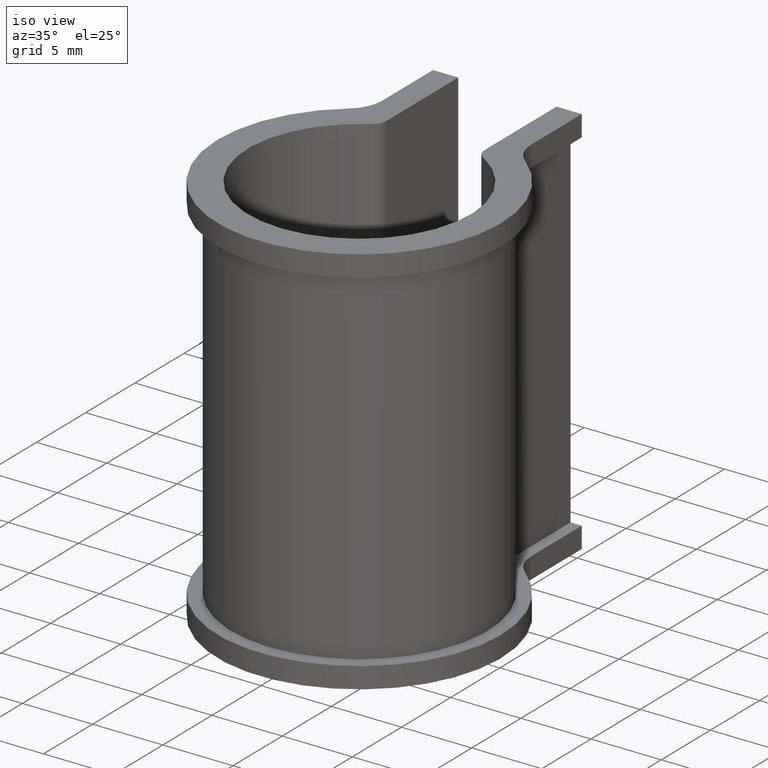
[diagram: clean part render]
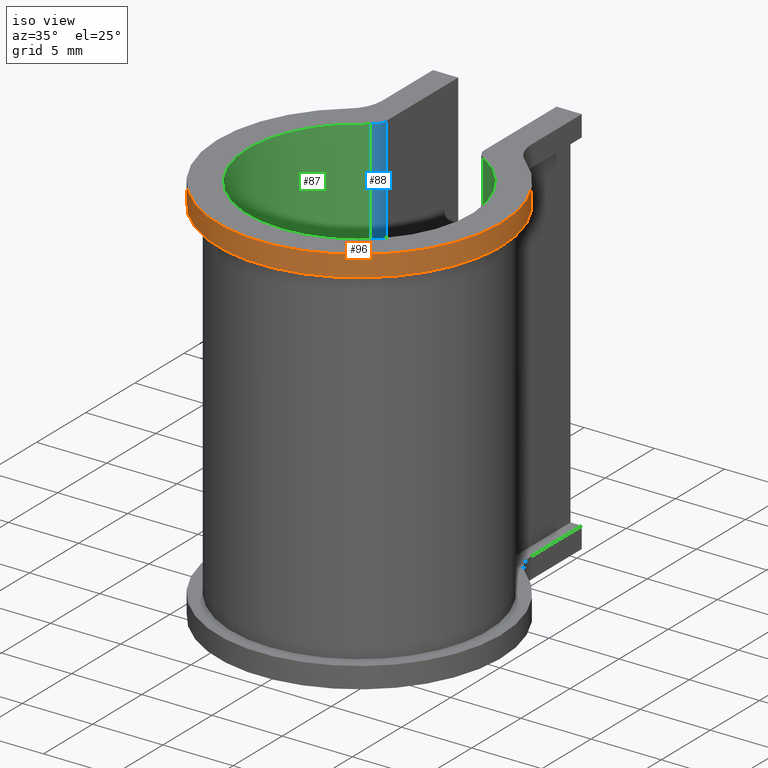
[diagram: same view with three faces highlighted in distinct colors, each labeled with its STEP entity id]
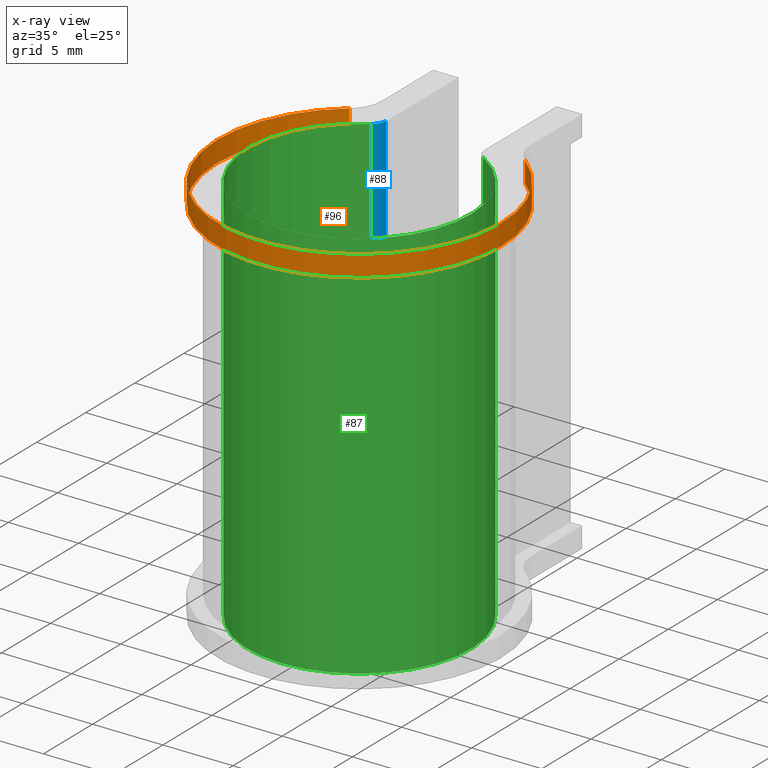
[diagram: x-ray of the same camera — body ghosted, the three highlighted faces saturated]
A machine part, iso view with three faces highlighted in distinct colors.
The next image is the same camera in x-ray (body ghosted, the three faces saturated) — at least one of them is partly hidden behind the body in this view.
Their STEP definitions:

[orange] entity #96 — the highlighted cylindrical surface (partial cylindrical patch) has radius 10.09 mm, axis along (0, 0, 1).
#96 = ADVANCED_FACE( '', ( #144 ), #145, .T. );
#144 = FACE_OUTER_BOUND( '', #196, .T. );
#145 = CYLINDRICAL_SURFACE( '', #197, 10.0900000000000 );
#196 = EDGE_LOOP( '', ( #385, #386, #387, #388 ) );
#197 = AXIS2_PLACEMENT_3D( '', #389, #390, #391 );
#385 = ORIENTED_EDGE( '', *, *, #462, .T. );
#386 = ORIENTED_EDGE( '', *, *, #476, .T. );
#387 = ORIENTED_EDGE( '', *, *, #471, .F. );
#388 = ORIENTED_EDGE( '', *, *, #489, .T. );
#389 = CARTESIAN_POINT( '', ( 0.000000000000000, 0.000000000000000, 1.50000000000000 ) );
#390 = DIRECTION( '', ( 0.000000000000000, 0.000000000000000, 1.00000000000000 ) );
#391 = DIRECTION( '', ( 0.000000000000000, -1.00000000000000, 0.000000000000000 ) );
#462 = EDGE_CURVE( '', #565, #563, #566, .T. );
#471 = EDGE_CURVE( '', #579, #581, #582, .T. );
#476 = EDGE_CURVE( '', #563, #581, #589, .F. );
#489 = EDGE_CURVE( '', #579, #565, #606, .T. );
#563 = VERTEX_POINT( '', #707 );
#565 = VERTEX_POINT( '', #709 );
#566 = CIRCLE( '', #710, 10.0900000000000 );
#579 = VERTEX_POINT( '', #727 );
#581 = VERTEX_POINT( '', #729 );
#582 = CIRCLE( '', #730, 10.0900000000000 );
#589 = LINE( '', #739, #740 );
#606 = LINE( '', #766, #767 );
#707 = CARTESIAN_POINT( '', ( 6.25115170770453, 7.92030317142360, 0.000000000000000 ) );
#709 = CARTESIAN_POINT( '', ( -6.25115170770453, 7.92030317142360, 0.000000000000000 ) );
#710 = AXIS2_PLACEMENT_3D( '', #842, #843, #844 );
#727 = CARTESIAN_POINT( '', ( -6.25115170770453, 7.92030317142360, 1.50000000000000 ) );
#729 = CARTESIAN_POINT( '', ( 6.25115170770453, 7.92030317142360, 1.50000000000000 ) );
#730 = AXIS2_PLACEMENT_3D( '', #861, #862, #863 );
#739 = CARTESIAN_POINT( '', ( 6.25115170770453, 7.92030317142360, 1.50000000000000 ) );
#740 = VECTOR( '', #872, 1000.00000000000 );
#766 = CARTESIAN_POINT( '', ( -6.25115170770453, 7.92030317142360, 1.50000000000000 ) );
#767 = VECTOR( '', #891, 1000.00000000000 );
#842 = CARTESIAN_POINT( '', ( 0.000000000000000, 0.000000000000000, 0.000000000000000 ) );
#843 = DIRECTION( '', ( 0.000000000000000, 0.000000000000000, 1.00000000000000 ) );
#844 = DIRECTION( '', ( 1.00000000000000, 0.000000000000000, 0.000000000000000 ) );
#861 = CARTESIAN_POINT( '', ( 0.000000000000000, 0.000000000000000, 1.50000000000000 ) );
#862 = DIRECTION( '', ( 0.000000000000000, 0.000000000000000, 1.00000000000000 ) );
#863 = DIRECTION( '', ( 1.00000000000000, 0.000000000000000, 0.000000000000000 ) );
#872 = DIRECTION( '', ( 0.000000000000000, 0.000000000000000, -1.00000000000000 ) );
#891 = DIRECTION( '', ( 0.000000000000000, 0.000000000000000, -1.00000000000000 ) );

[blue] entity #88 — the highlighted cylindrical surface (edge-blend (fillet) strip) has radius 1 mm, axis along (0, 0, -1).
#88 = ADVANCED_FACE( '', ( #128 ), #129, .T. );
#128 = FACE_OUTER_BOUND( '', #180, .T. );
#129 = CYLINDRICAL_SURFACE( '', #181, 1.00000000000000 );
#180 = EDGE_LOOP( '', ( #329, #330, #331, #332 ) );
#181 = AXIS2_PLACEMENT_3D( '', #333, #334, #335 );
#329 = ORIENTED_EDGE( '', *, *, #486, .F. );
#330 = ORIENTED_EDGE( '', *, *, #487, .F. );
#331 = ORIENTED_EDGE( '', *, *, #468, .F. );
#332 = ORIENTED_EDGE( '', *, *, #485, .F. );
#333 = CARTESIAN_POINT( '', ( -4.50000000000000, 7.72486893092692, -25.0000000000000 ) );
#334 = DIRECTION( '', ( 0.000000000000000, 0.000000000000000, -1.00000000000000 ) );
#335 = DIRECTION( '', ( 1.00000000000000, 0.000000000000000, 0.000000000000000 ) );
#468 = EDGE_CURVE( '', #574, #576, #577, .T. );
#485 = EDGE_CURVE( '', #599, #574, #601, .T. );
#486 = EDGE_CURVE( '', #602, #599, #603, .F. );
#487 = EDGE_CURVE( '', #576, #602, #604, .F. );
#574 = VERTEX_POINT( '', #721 );
#576 = VERTEX_POINT( '', #723 );
#577 = CIRCLE( '', #724, 1.00000000000000 );
#599 = VERTEX_POINT( '', #756 );
#601 = LINE( '', #758, #759 );
#602 = VERTEX_POINT( '', #760 );
#603 = CIRCLE( '', #761, 1.00000000000000 );
#604 = LINE( '', #762, #763 );
#721 = CARTESIAN_POINT( '', ( -3.99664429530201, 6.86078963216552, 1.50000000000000 ) );
#723 = CARTESIAN_POINT( '', ( -3.50000000000000, 7.72486893092692, 1.50000000000000 ) );
#724 = AXIS2_PLACEMENT_3D( '', #854, #855, #856 );
#756 = CARTESIAN_POINT( '', ( -3.99664429530201, 6.86078963216552, -26.5000000000000 ) );
#758 = CARTESIAN_POINT( '', ( -3.99664429530201, 6.86078963216552, -25.0000000000000 ) );
#759 = VECTOR( '', #885, 1000.00000000000 );
#760 = CARTESIAN_POINT( '', ( -3.50000000000000, 7.72486893092692, -26.5000000000000 ) );
#761 = AXIS2_PLACEMENT_3D( '', #886, #887, #888 );
#762 = CARTESIAN_POINT( '', ( -3.50000000000000, 7.72486893092692, -25.0000000000000 ) );
#763 = VECTOR( '', #889, 1000.00000000000 );
#854 = CARTESIAN_POINT( '', ( -4.50000000000000, 7.72486893092692, 1.50000000000000 ) );
#855 = DIRECTION( '', ( 0.000000000000000, 0.000000000000000, 1.00000000000000 ) );
#856 = DIRECTION( '', ( 1.00000000000000, 0.000000000000000, 0.000000000000000 ) );
#885 = DIRECTION( '', ( 0.000000000000000, 0.000000000000000, 1.00000000000000 ) );
#886 = CARTESIAN_POINT( '', ( -4.50000000000000, 7.72486893092692, -26.5000000000000 ) );
#887 = DIRECTION( '', ( 0.000000000000000, 0.000000000000000, 1.00000000000000 ) );
#888 = DIRECTION( '', ( 1.00000000000000, 0.000000000000000, 0.000000000000000 ) );
#889 = DIRECTION( '', ( 0.000000000000000, 0.000000000000000, 1.00000000000000 ) );

[green] entity #87 — the highlighted cylindrical surface (partial cylindrical patch) has radius 7.94 mm, axis along (0, 0, -1).
#87 = ADVANCED_FACE( '', ( #126 ), #127, .F. );
#126 = FACE_OUTER_BOUND( '', #178, .T. );
#127 = CYLINDRICAL_SURFACE( '', #179, 7.94000000000000 );
#178 = EDGE_LOOP( '', ( #322, #323, #324, #325 ) );
#179 = AXIS2_PLACEMENT_3D( '', #326, #327, #328 );
#322 = ORIENTED_EDGE( '', *, *, #484, .T. );
#323 = ORIENTED_EDGE( '', *, *, #485, .T. );
#324 = ORIENTED_EDGE( '', *, *, #467, .F. );
#325 = ORIENTED_EDGE( '', *, *, #483, .T. );
#326 = CARTESIAN_POINT( '', ( 4.33680868994202E-016, 8.67361737988404E-016, -25.0000000000000 ) );
#327 = DIRECTION( '', ( 0.000000000000000, 0.000000000000000, -1.00000000000000 ) );
#328 = DIRECTION( '', ( -0.440806045340050, -0.897602378780084, 0.000000000000000 ) );
#467 = EDGE_CURVE( '', #573, #574, #575, .T. );
#483 = EDGE_CURVE( '', #573, #596, #598, .F. );
#484 = EDGE_CURVE( '', #596, #599, #600, .T. );
#485 = EDGE_CURVE( '', #599, #574, #601, .T. );
#573 = VERTEX_POINT( '', #720 );
#574 = VERTEX_POINT( '', #721 );
#575 = CIRCLE( '', #722, 7.94000000000000 );
#596 = VERTEX_POINT( '', #752 );
#598 = LINE( '', #754, #755 );
#599 = VERTEX_POINT( '', #756 );
#600 = CIRCLE( '', #757, 7.94000000000000 );
#601 = LINE( '', #758, #759 );
#720 = CARTESIAN_POINT( '', ( 3.99664429530202, 6.86078963216552, 1.50000000000000 ) );
#721 = CARTESIAN_POINT( '', ( -3.99664429530201, 6.86078963216552, 1.50000000000000 ) );
#722 = AXIS2_PLACEMENT_3D( '', #851, #852, #853 );
#752 = CARTESIAN_POINT( '', ( 3.99664429530202, 6.86078963216552, -26.5000000000000 ) );
#754 = CARTESIAN_POINT( '', ( 3.99664429530202, 6.86078963216552, -25.0000000000000 ) );
#755 = VECTOR( '', #881, 1000.00000000000 );
#756 = CARTESIAN_POINT( '', ( -3.99664429530201, 6.86078963216552, -26.5000000000000 ) );
#757 = AXIS2_PLACEMENT_3D( '', #882, #883, #884 );
#758 = CARTESIAN_POINT( '', ( -3.99664429530201, 6.86078963216552, -25.0000000000000 ) );
#759 = VECTOR( '', #885, 1000.00000000000 );
#851 = CARTESIAN_POINT( '', ( 0.000000000000000, 0.000000000000000, 1.50000000000000 ) );
#852 = DIRECTION( '', ( 0.000000000000000, 0.000000000000000, -1.00000000000000 ) );
#853 = DIRECTION( '', ( 1.00000000000000, 0.000000000000000, 0.000000000000000 ) );
#881 = DIRECTION( '', ( 0.000000000000000, 0.000000000000000, 1.00000000000000 ) );
#882 = CARTESIAN_POINT( '', ( 0.000000000000000, 0.000000000000000, -26.5000000000000 ) );
#883 = DIRECTION( '', ( 0.000000000000000, 0.000000000000000, -1.00000000000000 ) );
#884 = DIRECTION( '', ( 1.00000000000000, 0.000000000000000, 0.000000000000000 ) );
#885 = DIRECTION( '', ( 0.000000000000000, 0.000000000000000, 1.00000000000000 ) );